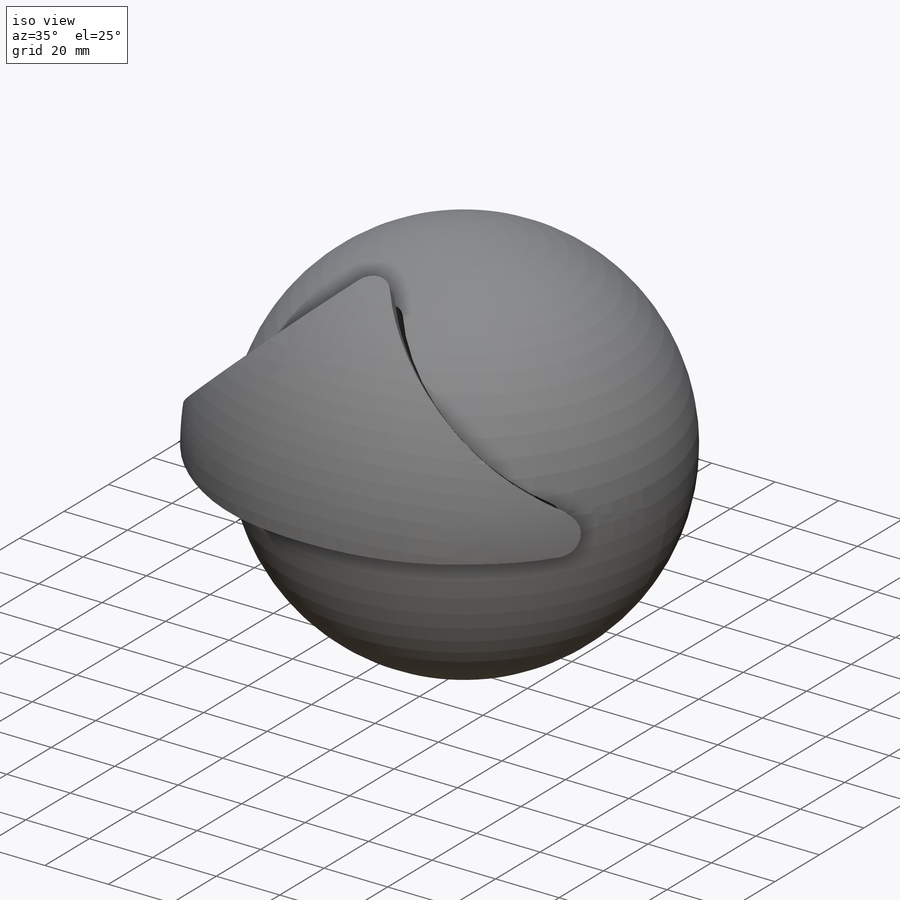
[diagram: iso view]
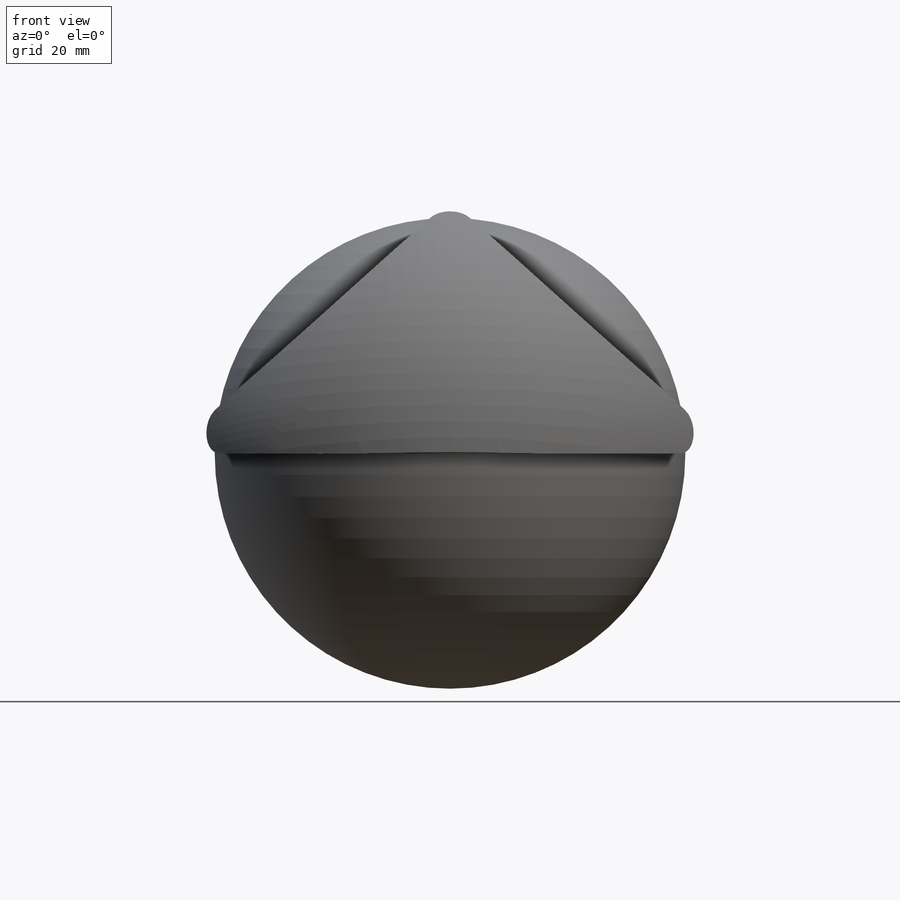
[diagram: front view]
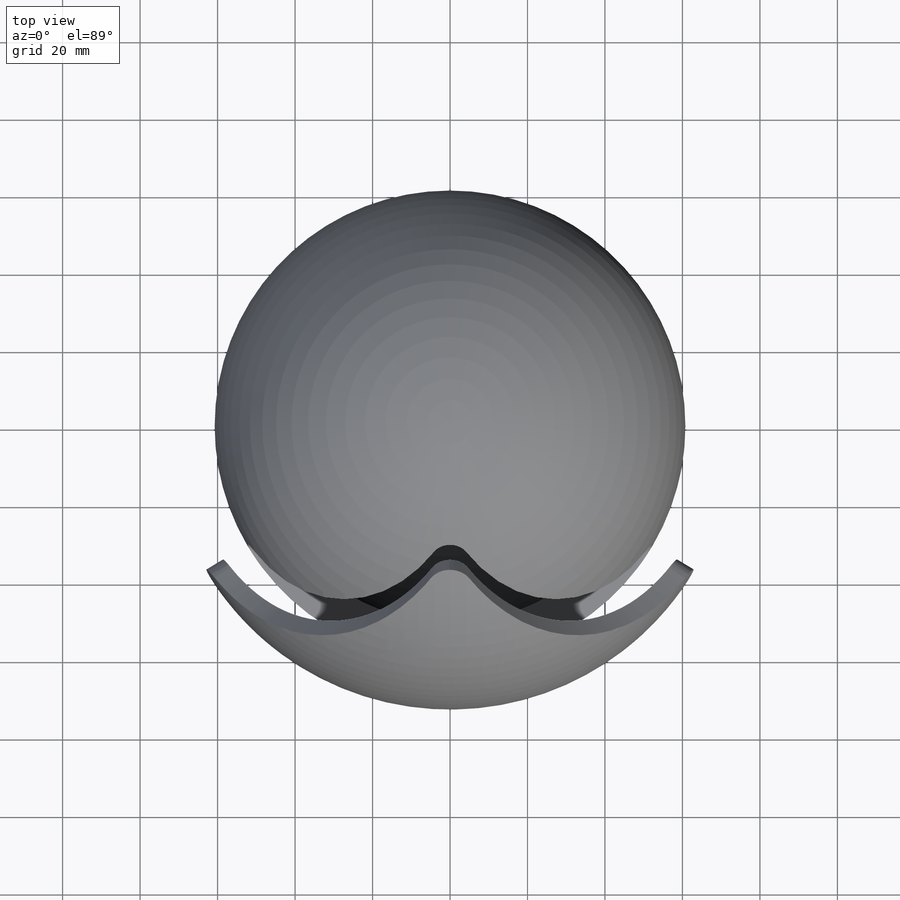
[diagram: top view]
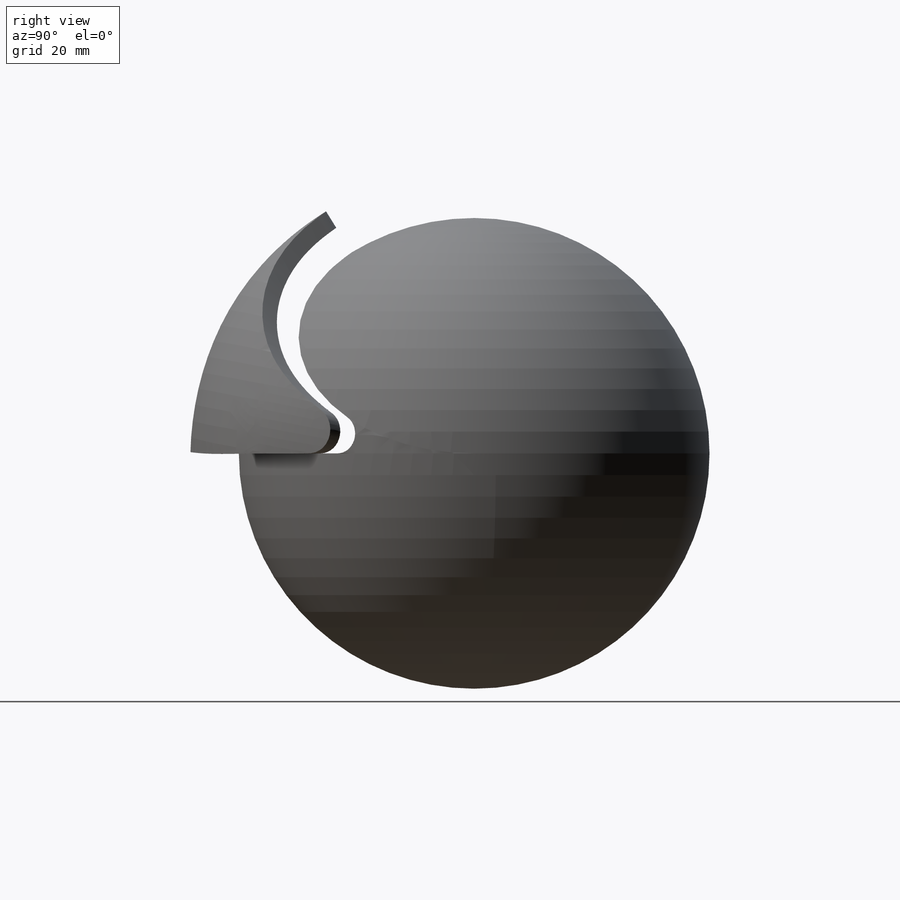
[diagram: right view]
SOLIDWORKS PART (.sldprt)
format: sldprt  version: not decoded by parser v0  size: 598,016 bytes
history: native  units: mm
features: sketch x4, plane x3, revolve x2, fillet x2, material x1 (+10 scaffold rows collapsed)
feature tree (22):
  scaffold x10  (default folders/planes/origin — collapsed)
  material  "Material <nicht festgelegt>"
  plane  "Ebene vorne"
  plane  "Ebene oben"
  plane  "Ebene rechts"
  sketch  "Skizze1"  dims[D1=10.0mm]
  revolve  "Rotation1"  Angle=360deg
  sketch  "Skizze2"  dims[c1.D1=0.0mm c2.D1=10.0mm]
  fillet  "Verrundung1"  Radius=5mm
  sketch  "Skizze3"  dims[D1=2.0mm]
  revolve  "Rotation2"  Angle=360deg
  sketch  "Skizze4"  dims[c1.D1=0.0mm c2.D1=10.0mm]
  fillet  "Wanddicke auftragen3"  Radius=2.5mm
decode coverage: 8 of 8 modeling features carry decoded parameters
note: suppression state not decoded; provenance and decode notes live in map.json
